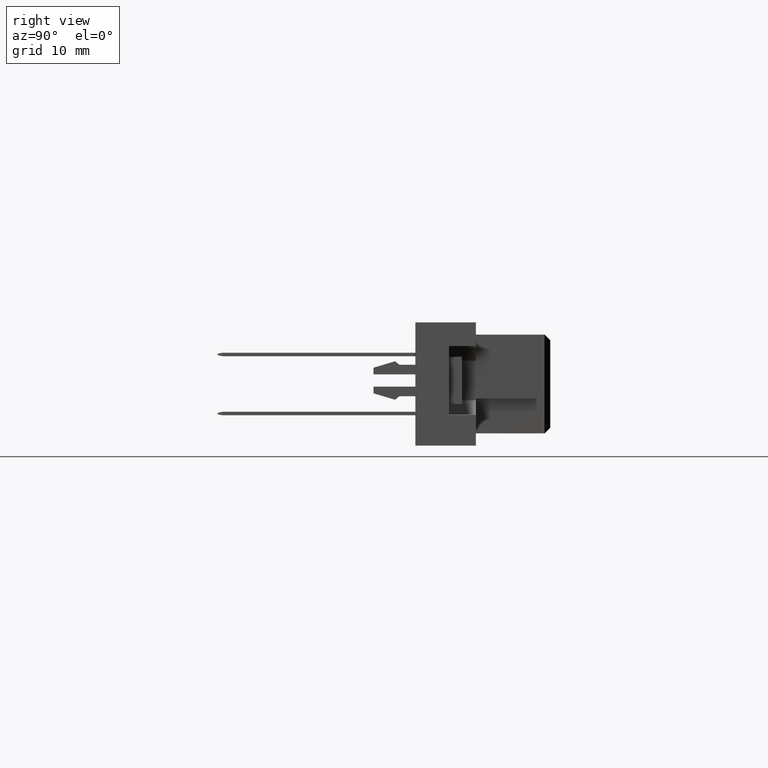
[diagram: clean part render]
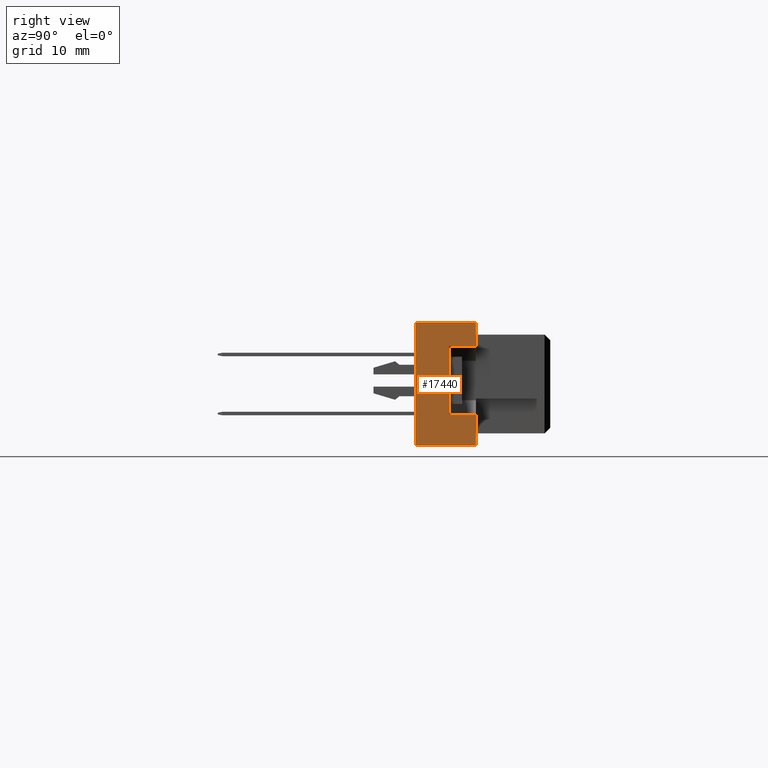
[diagram: same view with one face highlighted and labeled with its STEP entity id]
A machine part, right view. The second image highlights one B-rep face of the part: STEP entity #17440.
In plain terms, the highlighted planar face has unit normal (1, 0, 0).
Its self-contained STEP definition (entity closure, byte-faithful):
#364 = VERTEX_POINT ( 'NONE', #14070 ) ;
#518 = VECTOR ( 'NONE', #13859, 1000.000000000000000 ) ;
#886 = LINE ( 'NONE', #8976, #518 ) ;
#912 = DIRECTION ( 'NONE',  ( 0.0000000000000000000, 1.000000000000000000, 0.0000000000000000000 ) ) ;
#920 = DIRECTION ( 'NONE',  ( 0.0000000000000000000, 0.0000000000000000000, -1.000000000000000000 ) ) ;
#1029 = CARTESIAN_POINT ( 'NONE',  ( 27.49999999999999645, -6.400000000000001243, 5.299999999999999822 ) ) ;
#2225 = CARTESIAN_POINT ( 'NONE',  ( 27.49999999999999645, -11.59999999999999964, 5.299999999999999822 ) ) ;
#2339 = ORIENTED_EDGE ( 'NONE', *, *, #12169, .F. ) ;
#3517 = DIRECTION ( 'NONE',  ( 0.0000000000000000000, 0.0000000000000000000, -1.000000000000000000 ) ) ;
#3544 = VECTOR ( 'NONE', #3517, 1000.000000000000000 ) ;
#3716 = DIRECTION ( 'NONE',  ( -0.0000000000000000000, -0.0000000000000000000, -1.000000000000000000 ) ) ;
#4008 = LINE ( 'NONE', #1029, #4289 ) ;
#4211 = LINE ( 'NONE', #12177, #19230 ) ;
#4289 = VECTOR ( 'NONE', #920, 1000.000000000000000 ) ;
#4601 = VERTEX_POINT ( 'NONE', #14137 ) ;
#5200 = LINE ( 'NONE', #11691, #12183 ) ;
#5493 = CARTESIAN_POINT ( 'NONE',  ( 27.49999999999999645, -11.59999999999999964, -5.299999999999999822 ) ) ;
#5637 = VECTOR ( 'NONE', #17852, 1000.000000000000000 ) ;
#6233 = PLANE ( 'NONE',  #10568 ) ;
#6332 = FACE_OUTER_BOUND ( 'NONE', #17325, .T. ) ;
#6450 = VERTEX_POINT ( 'NONE', #8016 ) ;
#7272 = ORIENTED_EDGE ( 'NONE', *, *, #8879, .T. ) ;
#8016 = CARTESIAN_POINT ( 'NONE',  ( 27.49999999999999645, -6.400000000000001243, -5.299999999999999822 ) ) ;
#8120 = VERTEX_POINT ( 'NONE', #14067 ) ;
#8147 = CARTESIAN_POINT ( 'NONE',  ( 27.49999999999999645, -11.59999999999999964, 5.299999999999999822 ) ) ;
#8710 = DIRECTION ( 'NONE',  ( 0.0000000000000000000, 0.0000000000000000000, -1.000000000000000000 ) ) ;
#8736 = CARTESIAN_POINT ( 'NONE',  ( 27.49999999999999645, -6.400000000000001243, 5.299999999999999822 ) ) ;
#8879 = EDGE_CURVE ( 'NONE', #4601, #364, #10406, .T. ) ;
#8976 = CARTESIAN_POINT ( 'NONE',  ( 27.50000000000000355, -8.700000000000001066, 3.250000000000001776 ) ) ;
#9503 = ORIENTED_EDGE ( 'NONE', *, *, #15335, .T. ) ;
#9884 = CARTESIAN_POINT ( 'NONE',  ( 27.50000000000000355, -8.700000000000001066, 3.250000000000001776 ) ) ;
#10012 = EDGE_CURVE ( 'NONE', #14867, #19173, #11302, .T. ) ;
#10406 = LINE ( 'NONE', #2225, #15981 ) ;
#10568 = AXIS2_PLACEMENT_3D ( 'NONE', #8147, #19160, #20755 ) ;
#10642 = EDGE_CURVE ( 'NONE', #19173, #6450, #4008, .T. ) ;
#10824 = ORIENTED_EDGE ( 'NONE', *, *, #20772, .F. ) ;
#11302 = LINE ( 'NONE', #16054, #5637 ) ;
#11464 = VECTOR ( 'NONE', #912, 1000.000000000000000 ) ;
#11601 = LINE ( 'NONE', #19627, #3544 ) ;
#11691 = CARTESIAN_POINT ( 'NONE',  ( 27.50000000000000355, -8.700000000000001066, -2.649999999999994582 ) ) ;
#11976 = LINE ( 'NONE', #5493, #11464 ) ;
#12169 = EDGE_CURVE ( 'NONE', #4601, #13200, #4211, .T. ) ;
#12177 = CARTESIAN_POINT ( 'NONE',  ( 27.49999999999999645, -11.59999999999999964, 5.299999999999999822 ) ) ;
#12183 = VECTOR ( 'NONE', #3716, 1000.000000000000000 ) ;
#13001 = EDGE_CURVE ( 'NONE', #14599, #8120, #886, .T. ) ;
#13200 = VERTEX_POINT ( 'NONE', #8736 ) ;
#13859 = DIRECTION ( 'NONE',  ( -0.0000000000000000000, 1.000000000000000000, 6.123031769111886291E-17 ) ) ;
#14067 = CARTESIAN_POINT ( 'NONE',  ( 27.50000000000000355, -6.400000000000001243, 3.250000000000001776 ) ) ;
#14070 = CARTESIAN_POINT ( 'NONE',  ( 27.49999999999999645, -11.59999999999999964, -5.299999999999999822 ) ) ;
#14137 = CARTESIAN_POINT ( 'NONE',  ( 27.49999999999999645, -11.59999999999999964, 5.299999999999999822 ) ) ;
#14599 = VERTEX_POINT ( 'NONE', #9884 ) ;
#14685 = ORIENTED_EDGE ( 'NONE', *, *, #16759, .F. ) ;
#14867 = VERTEX_POINT ( 'NONE', #15490 ) ;
#15335 = EDGE_CURVE ( 'NONE', #364, #6450, #11976, .T. ) ;
#15490 = CARTESIAN_POINT ( 'NONE',  ( 27.50000000000000355, -8.700000000000001066, -2.649999999999994582 ) ) ;
#15981 = VECTOR ( 'NONE', #8710, 1000.000000000000000 ) ;
#16054 = CARTESIAN_POINT ( 'NONE',  ( 27.50000000000000355, -8.700000000000001066, -2.649999999999994582 ) ) ;
#16088 = ORIENTED_EDGE ( 'NONE', *, *, #13001, .T. ) ;
#16759 = EDGE_CURVE ( 'NONE', #14599, #14867, #5200, .T. ) ;
#16778 = ORIENTED_EDGE ( 'NONE', *, *, #10012, .F. ) ;
#17325 = EDGE_LOOP ( 'NONE', ( #16088, #10824, #2339, #7272, #9503, #19318, #16778, #14685 ) ) ;
#17440 = ADVANCED_FACE ( 'NONE', ( #6332 ), #6233, .T. ) ;
#17852 = DIRECTION ( 'NONE',  ( -0.0000000000000000000, 1.000000000000000000, 6.123031769111886291E-17 ) ) ;
#18621 = DIRECTION ( 'NONE',  ( 0.0000000000000000000, 1.000000000000000000, 0.0000000000000000000 ) ) ;
#19160 = DIRECTION ( 'NONE',  ( 1.000000000000000000, -0.0000000000000000000, 0.0000000000000000000 ) ) ;
#19173 = VERTEX_POINT ( 'NONE', #20831 ) ;
#19230 = VECTOR ( 'NONE', #18621, 1000.000000000000000 ) ;
#19318 = ORIENTED_EDGE ( 'NONE', *, *, #10642, .F. ) ;
#19627 = CARTESIAN_POINT ( 'NONE',  ( 27.49999999999999645, -6.400000000000001243, 5.299999999999999822 ) ) ;
#20755 = DIRECTION ( 'NONE',  ( 0.0000000000000000000, 0.0000000000000000000, -1.000000000000000000 ) ) ;
#20772 = EDGE_CURVE ( 'NONE', #13200, #8120, #11601, .T. ) ;
#20831 = CARTESIAN_POINT ( 'NONE',  ( 27.50000000000000355, -6.400000000000001243, -2.649999999999994582 ) ) ;